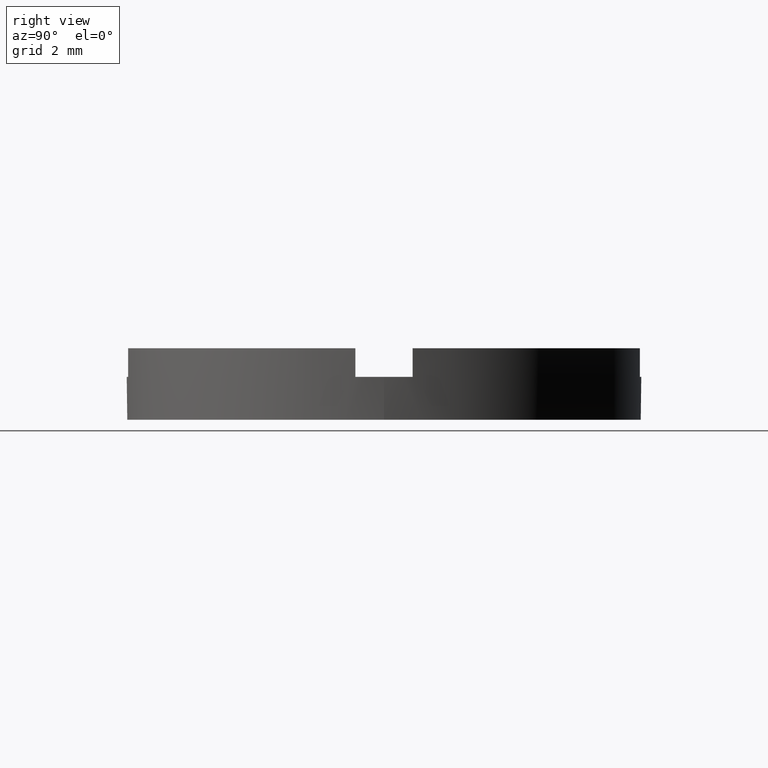
[diagram: clean part render]
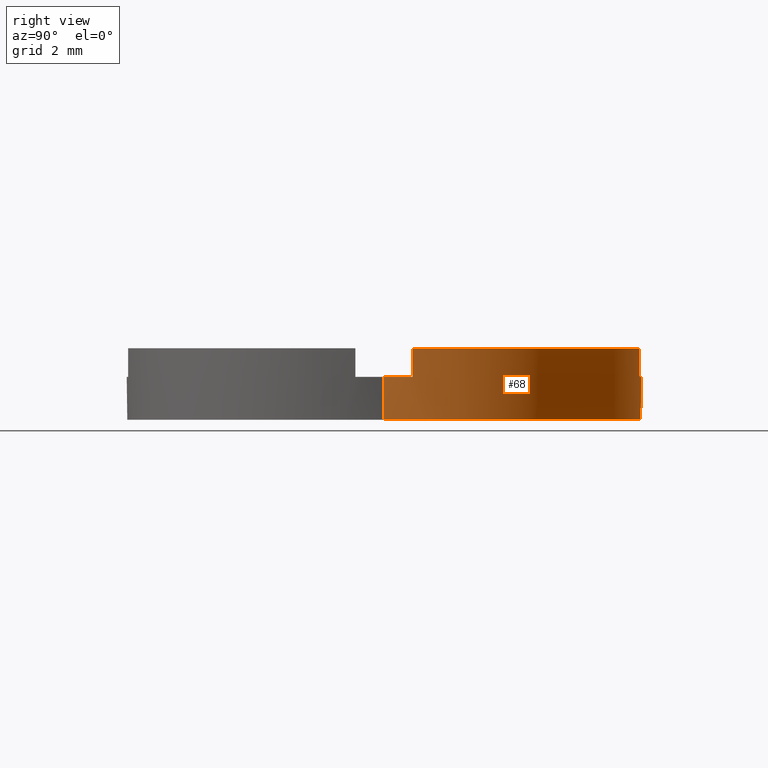
[diagram: same view with one face highlighted and labeled with its STEP entity id]
A machine part, right view. The second image highlights one B-rep face of the part: STEP entity #68.
In plain terms, the highlighted cylindrical surface (partial cylindrical patch) has radius 9 mm, axis along (-0, -0, -1).
Its self-contained STEP definition (entity closure, byte-faithful):
#11 = EDGE_CURVE ( 'NONE', #680, #598, #438, .T. ) ;
#13 = DIRECTION ( 'NONE',  ( -0.000000000000000000, -0.000000000000000000, 1.000000000000000000 ) ) ;
#18 = EDGE_CURVE ( 'NONE', #570, #53, #423, .T. ) ;
#27 = EDGE_CURVE ( 'NONE', #53, #309, #710, .T. ) ;
#35 = DIRECTION ( 'NONE',  ( 1.000000000000000000, 0.000000000000000000, 0.000000000000000000 ) ) ;
#39 = EDGE_CURVE ( 'NONE', #424, #675, #693, .T. ) ;
#53 = VERTEX_POINT ( 'NONE', #602 ) ;
#54 = EDGE_CURVE ( 'NONE', #675, #582, #685, .T. ) ;
#68 = ADVANCED_FACE ( 'NONE', ( #681 ), #723, .T. ) ;
#82 = EDGE_LOOP ( 'NONE', ( #616, #146, #589, #429, #316, #304, #94, #660, #322, #89, #346, #409 ) ) ;
#86 = CARTESIAN_POINT ( 'NONE',  ( -8.944271909999153891, 1.000000000000032419, 1.500000000000000000 ) ) ;
#89 = ORIENTED_EDGE ( 'NONE', *, *, #447, .T. ) ;
#94 = ORIENTED_EDGE ( 'NONE', *, *, #284, .F. ) ;
#96 = CARTESIAN_POINT ( 'NONE',  ( -0.9999999999999986677, 8.944271909999157444, 2.500000000000000000 ) ) ;
#127 = VERTEX_POINT ( 'NONE', #231 ) ;
#129 = CARTESIAN_POINT ( 'NONE',  ( 0.000000000000000000, 0.000000000000000000, 2.500000000000000000 ) ) ;
#131 = CIRCLE ( 'NONE', #213, 9.000000000000000000 ) ;
#141 = EDGE_CURVE ( 'NONE', #263, #127, #159, .T. ) ;
#146 = ORIENTED_EDGE ( 'NONE', *, *, #18, .T. ) ;
#159 = LINE ( 'NONE', #303, #162 ) ;
#162 = VECTOR ( 'NONE', #635, 1000.000000000000000 ) ;
#171 = VECTOR ( 'NONE', #566, 1000.000000000000000 ) ;
#172 = CARTESIAN_POINT ( 'NONE',  ( 1.000000000000001332, 8.944271909999157444, 1.500000000000000000 ) ) ;
#192 = CARTESIAN_POINT ( 'NONE',  ( 9.000000000000000000, 1.102182119232617714E-15, 1.500000000000000000 ) ) ;
#202 = LINE ( 'NONE', #528, #478 ) ;
#212 = DIRECTION ( 'NONE',  ( 1.000000000000000000, 0.000000000000000000, 0.000000000000000000 ) ) ;
#213 = AXIS2_PLACEMENT_3D ( 'NONE', #536, #781, #662 ) ;
#219 = DIRECTION ( 'NONE',  ( 1.000000000000000000, 0.000000000000000000, 0.000000000000000000 ) ) ;
#223 = CARTESIAN_POINT ( 'NONE',  ( 1.000000000000001332, 8.944271909999157444, 1.500000000000000000 ) ) ;
#231 = CARTESIAN_POINT ( 'NONE',  ( -8.944271909999153891, 1.000000000000032419, 2.500000000000000000 ) ) ;
#247 = CARTESIAN_POINT ( 'NONE',  ( -0.9999999999999986677, 8.944271909999157444, 1.500000000000000000 ) ) ;
#253 = CARTESIAN_POINT ( 'NONE',  ( 0.000000000000000000, 0.000000000000000000, 2.500000000000000000 ) ) ;
#263 = VERTEX_POINT ( 'NONE', #86 ) ;
#264 = CARTESIAN_POINT ( 'NONE',  ( 8.944271909999160997, 0.9999999999999655831, 1.500000000000000000 ) ) ;
#284 = EDGE_CURVE ( 'NONE', #582, #127, #735, .T. ) ;
#288 = CARTESIAN_POINT ( 'NONE',  ( -0.9999999999999986677, 8.944271909999157444, 1.500000000000000000 ) ) ;
#303 = CARTESIAN_POINT ( 'NONE',  ( -8.944271909999153891, 1.000000000000032419, 1.500000000000000000 ) ) ;
#304 = ORIENTED_EDGE ( 'NONE', *, *, #141, .T. ) ;
#309 = VERTEX_POINT ( 'NONE', #485 ) ;
#316 = ORIENTED_EDGE ( 'NONE', *, *, #561, .F. ) ;
#319 = CARTESIAN_POINT ( 'NONE',  ( 8.944271909999160997, 0.9999999999999655831, 2.500000000000000000 ) ) ;
#322 = ORIENTED_EDGE ( 'NONE', *, *, #39, .F. ) ;
#326 = EDGE_CURVE ( 'NONE', #583, #309, #202, .T. ) ;
#346 = ORIENTED_EDGE ( 'NONE', *, *, #755, .F. ) ;
#348 = CARTESIAN_POINT ( 'NONE',  ( 0.000000000000000000, 0.000000000000000000, 0.000000000000000000 ) ) ;
#355 = DIRECTION ( 'NONE',  ( -0.000000000000000000, 0.000000000000000000, 1.000000000000000000 ) ) ;
#375 = DIRECTION ( 'NONE',  ( -0.000000000000000000, -0.000000000000000000, 1.000000000000000000 ) ) ;
#399 = CIRCLE ( 'NONE', #745, 9.000000000000000000 ) ;
#409 = ORIENTED_EDGE ( 'NONE', *, *, #11, .F. ) ;
#423 = LINE ( 'NONE', #739, #443 ) ;
#424 = VERTEX_POINT ( 'NONE', #223 ) ;
#425 = VECTOR ( 'NONE', #375, 1000.000000000000000 ) ;
#429 = ORIENTED_EDGE ( 'NONE', *, *, #326, .F. ) ;
#437 = AXIS2_PLACEMENT_3D ( 'NONE', #510, #355, #545 ) ;
#438 = LINE ( 'NONE', #264, #171 ) ;
#443 = VECTOR ( 'NONE', #779, 1000.000000000000000 ) ;
#447 = EDGE_CURVE ( 'NONE', #424, #495, #637, .T. ) ;
#474 = AXIS2_PLACEMENT_3D ( 'NONE', #348, #519, #764 ) ;
#478 = VECTOR ( 'NONE', #562, 1000.000000000000000 ) ;
#485 = CARTESIAN_POINT ( 'NONE',  ( -9.000000000000000000, 0.000000000000000000, 0.000000000000000000 ) ) ;
#495 = VERTEX_POINT ( 'NONE', #641 ) ;
#501 = AXIS2_PLACEMENT_3D ( 'NONE', #253, #513, #615 ) ;
#510 = CARTESIAN_POINT ( 'NONE',  ( 0.000000000000000000, 0.000000000000000000, 1.500000000000000000 ) ) ;
#513 = DIRECTION ( 'NONE',  ( -0.000000000000000000, -0.000000000000000000, -1.000000000000000000 ) ) ;
#519 = DIRECTION ( 'NONE',  ( 0.000000000000000000, 0.000000000000000000, 1.000000000000000000 ) ) ;
#528 = CARTESIAN_POINT ( 'NONE',  ( -9.000000000000000000, 0.000000000000000000, 2.500000000000000000 ) ) ;
#536 = CARTESIAN_POINT ( 'NONE',  ( 0.000000000000000000, 0.000000000000000000, 1.500000000000000000 ) ) ;
#545 = DIRECTION ( 'NONE',  ( 1.000000000000000000, 0.000000000000000000, 0.000000000000000000 ) ) ;
#550 = DIRECTION ( 'NONE',  ( -0.000000000000000000, 0.000000000000000000, 1.000000000000000000 ) ) ;
#551 = AXIS2_PLACEMENT_3D ( 'NONE', #758, #550, #219 ) ;
#555 = CARTESIAN_POINT ( 'NONE',  ( 8.944271909999160997, 0.9999999999999655831, 1.500000000000000000 ) ) ;
#561 = EDGE_CURVE ( 'NONE', #263, #583, #131, .T. ) ;
#562 = DIRECTION ( 'NONE',  ( -0.000000000000000000, -0.000000000000000000, -1.000000000000000000 ) ) ;
#566 = DIRECTION ( 'NONE',  ( -0.000000000000000000, -0.000000000000000000, 1.000000000000000000 ) ) ;
#567 = AXIS2_PLACEMENT_3D ( 'NONE', #780, #669, #35 ) ;
#570 = VERTEX_POINT ( 'NONE', #192 ) ;
#582 = VERTEX_POINT ( 'NONE', #96 ) ;
#583 = VERTEX_POINT ( 'NONE', #653 ) ;
#589 = ORIENTED_EDGE ( 'NONE', *, *, #27, .T. ) ;
#598 = VERTEX_POINT ( 'NONE', #319 ) ;
#602 = CARTESIAN_POINT ( 'NONE',  ( 9.000000000000000000, 1.102182119232617714E-15, 0.000000000000000000 ) ) ;
#615 = DIRECTION ( 'NONE',  ( -1.000000000000000000, 0.000000000000000000, 0.000000000000000000 ) ) ;
#616 = ORIENTED_EDGE ( 'NONE', *, *, #704, .F. ) ;
#635 = DIRECTION ( 'NONE',  ( -0.000000000000000000, -0.000000000000000000, 1.000000000000000000 ) ) ;
#637 = LINE ( 'NONE', #172, #644 ) ;
#641 = CARTESIAN_POINT ( 'NONE',  ( 1.000000000000001332, 8.944271909999157444, 2.500000000000000000 ) ) ;
#644 = VECTOR ( 'NONE', #13, 1000.000000000000000 ) ;
#653 = CARTESIAN_POINT ( 'NONE',  ( -9.000000000000000000, 0.000000000000000000, 1.500000000000000000 ) ) ;
#656 = CIRCLE ( 'NONE', #437, 9.000000000000000000 ) ;
#660 = ORIENTED_EDGE ( 'NONE', *, *, #54, .F. ) ;
#662 = DIRECTION ( 'NONE',  ( 1.000000000000000000, 0.000000000000000000, 0.000000000000000000 ) ) ;
#669 = DIRECTION ( 'NONE',  ( 0.000000000000000000, 0.000000000000000000, 1.000000000000000000 ) ) ;
#675 = VERTEX_POINT ( 'NONE', #247 ) ;
#680 = VERTEX_POINT ( 'NONE', #555 ) ;
#681 = FACE_OUTER_BOUND ( 'NONE', #82, .T. ) ;
#685 = LINE ( 'NONE', #288, #425 ) ;
#693 = CIRCLE ( 'NONE', #551, 9.000000000000000000 ) ;
#696 = DIRECTION ( 'NONE',  ( 0.000000000000000000, 0.000000000000000000, 1.000000000000000000 ) ) ;
#704 = EDGE_CURVE ( 'NONE', #570, #680, #656, .T. ) ;
#710 = CIRCLE ( 'NONE', #474, 9.000000000000000000 ) ;
#723 = CYLINDRICAL_SURFACE ( 'NONE', #501, 9.000000000000000000 ) ;
#735 = CIRCLE ( 'NONE', #567, 9.000000000000000000 ) ;
#739 = CARTESIAN_POINT ( 'NONE',  ( 9.000000000000000000, 1.102182119232617714E-15, 2.500000000000000000 ) ) ;
#745 = AXIS2_PLACEMENT_3D ( 'NONE', #129, #696, #212 ) ;
#755 = EDGE_CURVE ( 'NONE', #598, #495, #399, .T. ) ;
#758 = CARTESIAN_POINT ( 'NONE',  ( 0.000000000000000000, 0.000000000000000000, 1.500000000000000000 ) ) ;
#764 = DIRECTION ( 'NONE',  ( 1.000000000000000000, 0.000000000000000000, 0.000000000000000000 ) ) ;
#779 = DIRECTION ( 'NONE',  ( -0.000000000000000000, -0.000000000000000000, -1.000000000000000000 ) ) ;
#780 = CARTESIAN_POINT ( 'NONE',  ( 0.000000000000000000, 0.000000000000000000, 2.500000000000000000 ) ) ;
#781 = DIRECTION ( 'NONE',  ( -0.000000000000000000, 0.000000000000000000, 1.000000000000000000 ) ) ;